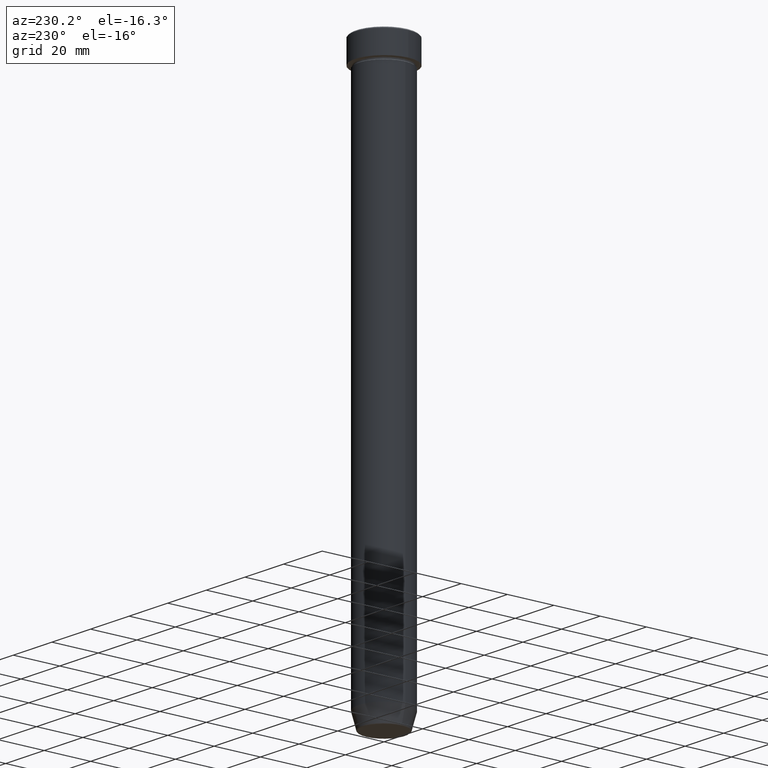
[diagram: clean part render]
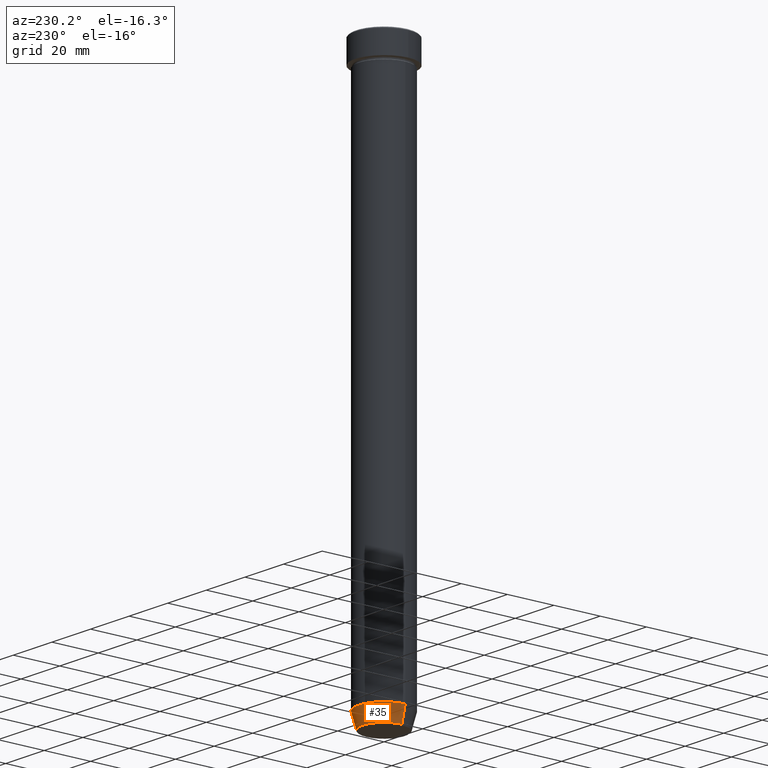
[diagram: same view with one face highlighted and labeled with its STEP entity id]
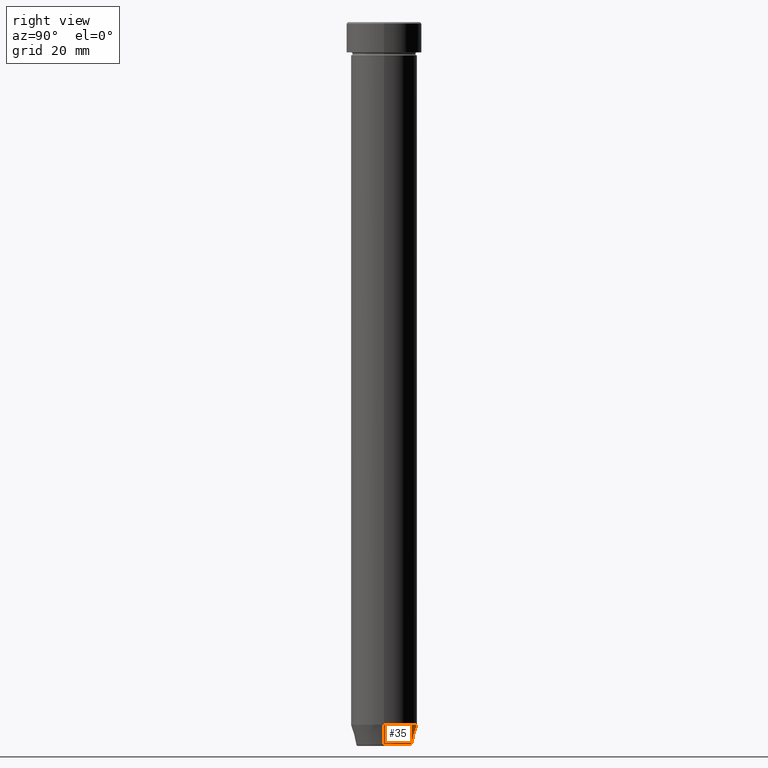
[diagram: same view with one face highlighted and labeled with its STEP entity id]
A machine part, auxiliary view. The second image highlights one B-rep face of the part: STEP entity #35.
A second angle (right view) of the same face is appended — the face is thin or edge-on in the first view.
In plain terms, the highlighted conical surface has half-angle 15 deg.
Its self-contained STEP definition (entity closure, byte-faithful):
#35 = ADVANCED_FACE ( 'NONE', ( #555 ), #54, .T. ) ;
#36 = DIRECTION ( 'NONE',  ( 1.000000000000000000, 0.000000000000000000, 0.000000000000000000 ) ) ;
#54 = CONICAL_SURFACE ( 'NONE', #585, 9.124355652982126585, 0.2617993877991509621 ) ;
#63 = VERTEX_POINT ( 'NONE', #102 ) ;
#64 = ORIENTED_EDGE ( 'NONE', *, *, #214, .T. ) ;
#102 = CARTESIAN_POINT ( 'NONE',  ( -11.00000000000000000, 1.347111479062088405E-15, -232.9999999999999716 ) ) ;
#104 = DIRECTION ( 'NONE',  ( -0.2588190451025222383, 3.169619151431782814E-17, 0.9659258262890678681 ) ) ;
#138 = DIRECTION ( 'NONE',  ( 1.000000000000000000, 0.000000000000000000, 0.000000000000000000 ) ) ;
#139 = CARTESIAN_POINT ( 'NONE',  ( -9.223655072137175281, 1.238341722557646018E-15, -239.6294095225512422 ) ) ;
#181 = LINE ( 'NONE', #333, #449 ) ;
#184 = DIRECTION ( 'NONE',  ( -0.000000000000000000, -0.000000000000000000, 1.000000000000000000 ) ) ;
#203 = CARTESIAN_POINT ( 'NONE',  ( 0.000000000000000000, 0.000000000000000000, -239.6294095225512422 ) ) ;
#214 = EDGE_CURVE ( 'NONE', #240, #63, #181, .T. ) ;
#223 = ORIENTED_EDGE ( 'NONE', *, *, #318, .F. ) ;
#240 = VERTEX_POINT ( 'NONE', #139 ) ;
#241 = DIRECTION ( 'NONE',  ( -0.000000000000000000, -0.000000000000000000, 1.000000000000000000 ) ) ;
#254 = CARTESIAN_POINT ( 'NONE',  ( 9.124355652982126585, 0.000000000000000000, -240.0000000000000000 ) ) ;
#256 = CIRCLE ( 'NONE', #497, 11.00000000000000000 ) ;
#265 = DIRECTION ( 'NONE',  ( -0.000000000000000000, -0.000000000000000000, 1.000000000000000000 ) ) ;
#311 = EDGE_CURVE ( 'NONE', #412, #240, #364, .T. ) ;
#312 = CARTESIAN_POINT ( 'NONE',  ( 9.223655072137175281, 0.000000000000000000, -239.6294095225512422 ) ) ;
#318 = EDGE_CURVE ( 'NONE', #380, #63, #256, .T. ) ;
#322 = VECTOR ( 'NONE', #492, 1000.000000000000000 ) ;
#333 = CARTESIAN_POINT ( 'NONE',  ( -9.124355652982126585, 1.117411294470662018E-15, -240.0000000000000000 ) ) ;
#340 = EDGE_CURVE ( 'NONE', #412, #380, #488, .T. ) ;
#358 = CARTESIAN_POINT ( 'NONE',  ( 0.000000000000000000, 0.000000000000000000, -232.9999999999999716 ) ) ;
#364 = CIRCLE ( 'NONE', #441, 9.223655072137175281 ) ;
#380 = VERTEX_POINT ( 'NONE', #526 ) ;
#412 = VERTEX_POINT ( 'NONE', #312 ) ;
#441 = AXIS2_PLACEMENT_3D ( 'NONE', #203, #241, #520 ) ;
#445 = ORIENTED_EDGE ( 'NONE', *, *, #311, .T. ) ;
#449 = VECTOR ( 'NONE', #104, 1000.000000000000000 ) ;
#467 = EDGE_LOOP ( 'NONE', ( #445, #64, #223, #506 ) ) ;
#488 = LINE ( 'NONE', #254, #322 ) ;
#492 = DIRECTION ( 'NONE',  ( 0.2588190451025222383, 0.000000000000000000, 0.9659258262890678681 ) ) ;
#497 = AXIS2_PLACEMENT_3D ( 'NONE', #358, #265, #36 ) ;
#506 = ORIENTED_EDGE ( 'NONE', *, *, #340, .F. ) ;
#520 = DIRECTION ( 'NONE',  ( -1.000000000000000000, 0.000000000000000000, 0.000000000000000000 ) ) ;
#526 = CARTESIAN_POINT ( 'NONE',  ( 11.00000000000000000, 0.000000000000000000, -232.9999999999999716 ) ) ;
#555 = FACE_OUTER_BOUND ( 'NONE', #467, .T. ) ;
#585 = AXIS2_PLACEMENT_3D ( 'NONE', #594, #184, #138 ) ;
#594 = CARTESIAN_POINT ( 'NONE',  ( 0.000000000000000000, 0.000000000000000000, -240.0000000000000000 ) ) ;